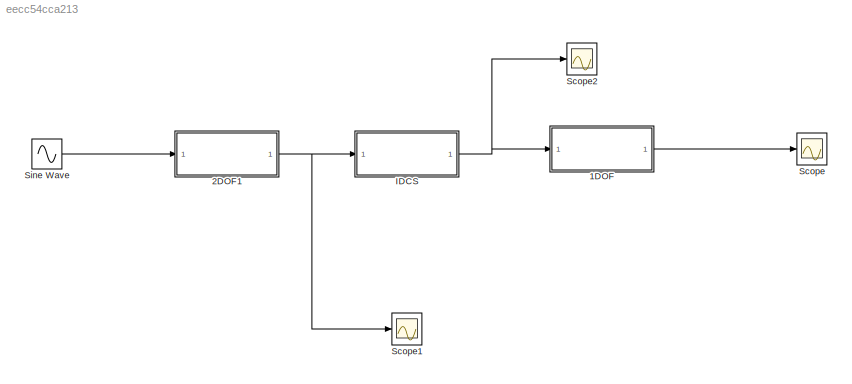
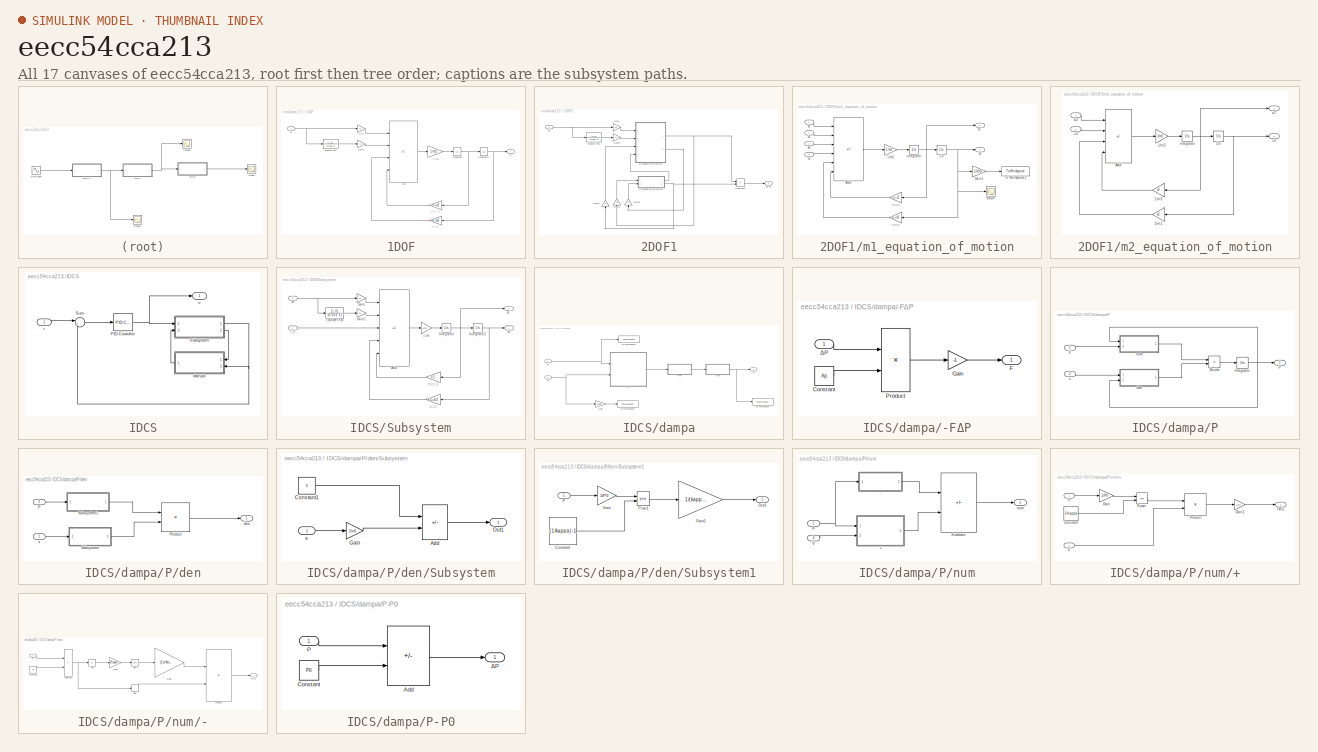
[diagram: thumbnail index - all 17 canvases of the model, root first then tree order]
MODEL slx_eecc54cca213
KIND model
CONFIG AbsTol = auto
CONFIG EnableMultiTasking = off
CONFIG FixedStep = 0.001
CONFIG MaxStep = auto
CONFIG MinStep = auto
CONFIG RelTol = 1e-3
CONFIG SampleTimeConstraint = Unconstrained
CONFIG Solver = ode4
CONFIG SolverName = ode4
CONFIG StartTime = 0.0
CONFIG StopTime = 10.0
BLOCK [SubSystem] 1DOF
  Ports = [1, 1]
  RequestExecContextInheritance = off
BLOCK [Sum] 1DOF/Add
  IconShape = rectangular
  Inputs = ++--
  Ports = [4, 1]
BLOCK [Gain] 1DOF/Gain1
  Gain = c1
BLOCK [Integrator] 1DOF/Integrator
  Ports = [1, 1]
BLOCK [Integrator] 1DOF/Integrator1
  Ports = [1, 1]
BLOCK [TransferFcn] 1DOF/Transfer Fcn
  Denominator = [0.001 1]
  Numerator = [1 0]
BLOCK [Inport] 1DOF/x0
BLOCK [Outport] 1DOF/x1
BLOCK [Gain] 1DOF/ばね下
  Gain = k1
BLOCK [Gain] 1DOF/ばね定数 
  Gain = k1+k2
BLOCK [Gain] 1DOF/ばね定数 1
  Gain = c1+c2
BLOCK [Gain] 1DOF/質量m
  Gain = 1/m1
BLOCK [SubSystem] 2DOF1
  Ports = [1, 1]
  RequestExecContextInheritance = off
BLOCK [Gain] 2DOF1/Gain
  Gain = k1
BLOCK [Gain] 2DOF1/Gain1
  Gain = k2
  NameLocation = right
BLOCK [Gain] 2DOF1/Gain2
  Gain = k2
  NameLocation = right
BLOCK [Gain] 2DOF1/Gain3
  Gain = c2
  NameLocation = right
BLOCK [Gain] 2DOF1/Gain5
  Gain = c1
BLOCK [Sum] 2DOF1/Subtract1
  IconShape = rectangular
  Inputs = -+
  Ports = [2, 1]
BLOCK [TransferFcn] 2DOF1/Transfer Fcn
  Denominator = [0.001 1]
  Numerator = [1 0]
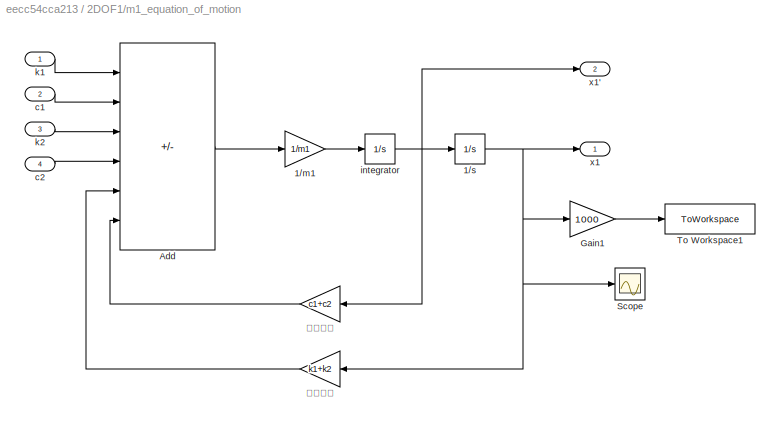
BLOCK [SubSystem] 2DOF1/m1_equation_of_motion
  Ports = [4, 2]
  RequestExecContextInheritance = off
BLOCK [Gain] 2DOF1/m1_equation_of_motion/1//m1
  Gain = 1/m1
BLOCK [Integrator] 2DOF1/m1_equation_of_motion/1//s
  Ports = [1, 1]
BLOCK [Sum] 2DOF1/m1_equation_of_motion/Add
  IconShape = rectangular
  Inputs = ++++--
  Ports = [6, 1]
BLOCK [Gain] 2DOF1/m1_equation_of_motion/Gain1
  Gain = 1000
BLOCK [Scope] 2DOF1/m1_equation_of_motion/Scope
  Floating = off
  NumInputPorts = 1
  Ports = [1]
  ScopeSpecificationString = Simulink.scopes.TimeScopeBlockCfg('CurrentConfiguration', extmgr.ConfigurationSet(extmgr.Configuration('Core','General UI',true),extmgr.Configuration('Core','Source UI',true),extmgr.Configuration('Sources','WiredSimulink',true,'DataLoggingVariableName','ScopeData3'),extmgr.Configuration('Visuals','Time Domain',true,'SerializedDisplays',{struct('MinYLimReal','-0.00855','MaxYLimReal','0.00872','YLab...<+1362ch>
BLOCK [ToWorkspace] 2DOF1/m1_equation_of_motion/To Workspace1
  FixptAsFi = on
  MaxDataPoints = inf
  Ports = [1]
  SampleTime = -1
  SaveFormat = Timeseries
  VariableName = x1
BLOCK [Inport] 2DOF1/m1_equation_of_motion/c1
  IconDisplay = Port number and signal name
  Port = 2
BLOCK [Inport] 2DOF1/m1_equation_of_motion/c2
  IconDisplay = Port number and signal name
  Port = 4
BLOCK [Integrator] 2DOF1/m1_equation_of_motion/integrator
  Ports = [1, 1]
BLOCK [Inport] 2DOF1/m1_equation_of_motion/k1
  IconDisplay = Port number and signal name
BLOCK [Inport] 2DOF1/m1_equation_of_motion/k2
  IconDisplay = Port number and signal name
  Port = 3
BLOCK [Outport] 2DOF1/m1_equation_of_motion/x1
BLOCK [Outport] 2DOF1/m1_equation_of_motion/x1'
  Port = 2
BLOCK [Gain] 2DOF1/m1_equation_of_motion/ばね定数
  Gain = k1+k2
BLOCK [Gain] 2DOF1/m1_equation_of_motion/減衰係数
  Gain = c1+c2
BLOCK [SubSystem] 2DOF1/m2_equation_of_motion
  Ports = [2, 2]
  RequestExecContextInheritance = off
BLOCK [Gain] 2DOF1/m2_equation_of_motion/1//m1
  Gain = k2
BLOCK [Gain] 2DOF1/m2_equation_of_motion/1//m2
  Gain = 1/m2
BLOCK [Gain] 2DOF1/m2_equation_of_motion/1//m3
  Gain = c2
BLOCK [Integrator] 2DOF1/m2_equation_of_motion/1//s
  Ports = [1, 1]
BLOCK [Sum] 2DOF1/m2_equation_of_motion/Add
  IconShape = rectangular
  Inputs = ++--
  Ports = [4, 1]
BLOCK [Inport] 2DOF1/m2_equation_of_motion/c2
  Port = 2
BLOCK [Integrator] 2DOF1/m2_equation_of_motion/integrator
  Ports = [1, 1]
BLOCK [Inport] 2DOF1/m2_equation_of_motion/k2 
BLOCK [Outport] 2DOF1/m2_equation_of_motion/x2
  Port = 2
BLOCK [Outport] 2DOF1/m2_equation_of_motion/x2'
BLOCK [Inport] 2DOF1/x0
BLOCK [Outport] 2DOF1/x2-x1
BLOCK [SubSystem] IDCS
  Ports = [1, 1]
  RequestExecContextInheritance = off
BLOCK [Reference] IDCS/PID Controller  REF=simulink/Continuous/PID Controller
  Ports = [1, 1]
  SourceBlock = simulink/Continuous/PID Controller
  SourceProductBaseCode = SL
  SourceType = PID 1dof
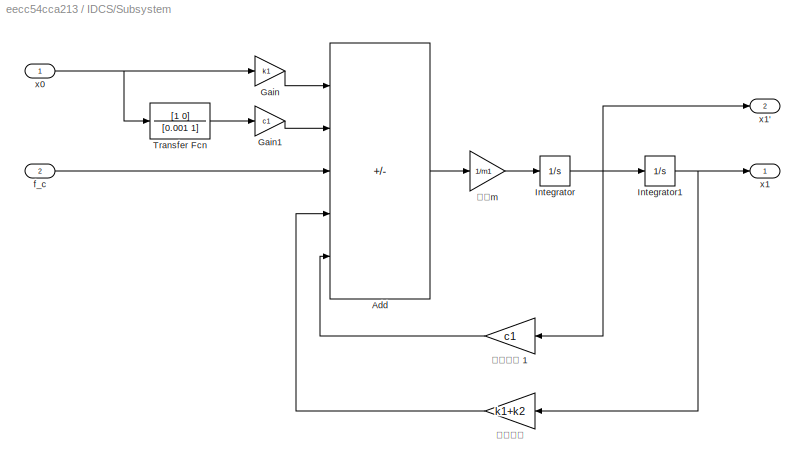
BLOCK [SubSystem] IDCS/Subsystem
  Ports = [2, 2]
  RequestExecContextInheritance = off
BLOCK [Sum] IDCS/Subsystem/Add
  IconShape = rectangular
  Inputs = +++--
  Ports = [5, 1]
BLOCK [Gain] IDCS/Subsystem/Gain
  Gain = k1
BLOCK [Gain] IDCS/Subsystem/Gain1
  Gain = c1
BLOCK [Integrator] IDCS/Subsystem/Integrator
  Ports = [1, 1]
BLOCK [Integrator] IDCS/Subsystem/Integrator1
  Ports = [1, 1]
BLOCK [TransferFcn] IDCS/Subsystem/Transfer Fcn
  Denominator = [0.001 1]
  Numerator = [1 0]
BLOCK [Inport] IDCS/Subsystem/f_c
  Port = 2
BLOCK [Inport] IDCS/Subsystem/x0
BLOCK [Outport] IDCS/Subsystem/x1
BLOCK [Outport] IDCS/Subsystem/x1'
  Port = 2
BLOCK [Gain] IDCS/Subsystem/ばね定数 
  Gain = k1+k2
BLOCK [Gain] IDCS/Subsystem/ばね定数 1
  Gain = c1
BLOCK [Gain] IDCS/Subsystem/質量m
  Gain = 1/m1
BLOCK [Sum] IDCS/Sum
  Inputs = |+-
  Ports = [2, 1]
BLOCK [SubSystem] IDCS/dampa
  Ports = [2, 1]
  RequestExecContextInheritance = off
BLOCK [SubSystem] IDCS/dampa/-FΔP
  Ports = [1, 1]
  RequestExecContextInheritance = off
BLOCK [Constant] IDCS/dampa/-FΔP/Constant
  Value = Ap
BLOCK [Outport] IDCS/dampa/-FΔP/F
BLOCK [Gain] IDCS/dampa/-FΔP/Gain
  Gain = -1
BLOCK [Product] IDCS/dampa/-FΔP/Product
  Ports = [2, 1]
BLOCK [Inport] IDCS/dampa/-FΔP/ΔP
BLOCK [Gain] IDCS/dampa/Gain
  Gain = 1000
BLOCK [SubSystem] IDCS/dampa/P
  Ports = [2, 1]
  RequestExecContextInheritance = off
BLOCK [SubSystem] IDCS/dampa/P-P0
  Ports = [1, 1]
  RequestExecContextInheritance = off
BLOCK [Sum] IDCS/dampa/P-P0/Add
  IconShape = rectangular
  Inputs = +-
  Ports = [2, 1]
BLOCK [Constant] IDCS/dampa/P-P0/Constant
  Value = P0
BLOCK [Inport] IDCS/dampa/P-P0/P
BLOCK [Outport] IDCS/dampa/P-P0/ΔP
BLOCK [Product] IDCS/dampa/P/Divide
  Inputs = */
  Ports = [2, 1]
BLOCK [Integrator] IDCS/dampa/P/Integrator
  InitialCondition = P0
  Ports = [1, 1]
BLOCK [Outport] IDCS/dampa/P/P
BLOCK [Inport] IDCS/dampa/P/V
BLOCK [SubSystem] IDCS/dampa/P/den
  Ports = [2, 1]
  RequestExecContextInheritance = off
BLOCK [Inport] IDCS/dampa/P/den/P
  Port = 2
BLOCK [Product] IDCS/dampa/P/den/Product
  Ports = [2, 1]
BLOCK [SubSystem] IDCS/dampa/P/den/Subsystem
  Ports = [1, 1]
  RequestExecContextInheritance = off
BLOCK [Sum] IDCS/dampa/P/den/Subsystem/Add
  IconShape = rectangular
  Inputs = +-
  Ports = [2, 1]
BLOCK [Constant] IDCS/dampa/P/den/Subsystem/Constant1
BLOCK [Gain] IDCS/dampa/P/den/Subsystem/Gain
  Gain = 1/x0
BLOCK [Outport] IDCS/dampa/P/den/Subsystem/Out1
BLOCK [Inport] IDCS/dampa/P/den/Subsystem/x
BLOCK [SubSystem] IDCS/dampa/P/den/Subsystem1
  Ports = [1, 1]
  RequestExecContextInheritance = off
BLOCK [Constant] IDCS/dampa/P/den/Subsystem1/Constant
  Value = (1/kappa)-1
BLOCK [Gain] IDCS/dampa/P/den/Subsystem1/Gain
  Gain = 1/P0
BLOCK [Gain] IDCS/dampa/P/den/Subsystem1/Gain1
  Gain = 1/(kappa*P0)
BLOCK [Outport] IDCS/dampa/P/den/Subsystem1/Out1
BLOCK [Inport] IDCS/dampa/P/den/Subsystem1/P
BLOCK [Math] IDCS/dampa/P/den/Subsystem1/Pow1
  Operator = pow
  OutputSignalType = real
  Ports = [2, 1]
  SignedPower = on
BLOCK [Outport] IDCS/dampa/P/den/den
BLOCK [Inport] IDCS/dampa/P/den/x
BLOCK [SubSystem] IDCS/dampa/P/num
  Ports = [2, 1]
  RequestExecContextInheritance = off
BLOCK [SubSystem] IDCS/dampa/P/num/+
  Ports = [2, 1]
  RequestExecContextInheritance = off
BLOCK [Constant] IDCS/dampa/P/num/+/Constant
  Value = 1/kappa
BLOCK [Gain] IDCS/dampa/P/num/+/Gain
  Gain = 1/P0
BLOCK [Gain] IDCS/dampa/P/num/+/Gain1
  Gain = 1/x0
BLOCK [Outport] IDCS/dampa/P/num/+/Out1
BLOCK [Inport] IDCS/dampa/P/num/+/P
BLOCK [Math] IDCS/dampa/P/num/+/Power
  Operator = pow
  OutputSignalType = real
  Ports = [2, 1]
  SignedPower = on
BLOCK [Product] IDCS/dampa/P/num/+/Product
  Ports = [2, 1]
BLOCK [Inport] IDCS/dampa/P/num/+/V
  Port = 2
BLOCK [SubSystem] IDCS/dampa/P/num/-
  Ports = [1, 1]
  RequestExecContextInheritance = off
BLOCK [Abs] IDCS/dampa/P/num/-/Abs
  SaturateOnIntegerOverflow = off
BLOCK [Constant] IDCS/dampa/P/num/-/Constant
  Value = P0
BLOCK [Gain] IDCS/dampa/P/num/-/Gain
  Gain = 2*row0
BLOCK [Gain] IDCS/dampa/P/num/-/Gain1
  Gain = (Cor*Aor)/(row0*Ap*x0)
BLOCK [Outport] IDCS/dampa/P/num/-/Out1
BLOCK [Inport] IDCS/dampa/P/num/-/P
BLOCK [Product] IDCS/dampa/P/num/-/Product
  Ports = [2, 1]
BLOCK [Signum] IDCS/dampa/P/num/-/Sign
BLOCK [Sqrt] IDCS/dampa/P/num/-/Sqrt
BLOCK [Sum] IDCS/dampa/P/num/-/Subtract
  IconShape = rectangular
  Inputs = +-
  Ports = [2, 1]
BLOCK [Inport] IDCS/dampa/P/num/P
BLOCK [Sum] IDCS/dampa/P/num/Subtract
  IconShape = rectangular
  Inputs = -+
  Ports = [2, 1]
BLOCK [Inport] IDCS/dampa/P/num/V
  Port = 2
BLOCK [Outport] IDCS/dampa/P/num/num
BLOCK [Inport] IDCS/dampa/P/x
  Port = 2
BLOCK [ToWorkspace] IDCS/dampa/To Workspace
  FixptAsFi = on
  MaxDataPoints = inf
  Ports = [1]
  SampleTime = -1
  SaveFormat = Timeseries
  VariableName = F
BLOCK [ToWorkspace] IDCS/dampa/To Workspace1
  FixptAsFi = on
  MaxDataPoints = inf
  Ports = [1]
  SampleTime = -1
  SaveFormat = Timeseries
  VariableName = X
BLOCK [ToWorkspace] IDCS/dampa/To Workspace2
  FixptAsFi = on
  MaxDataPoints = inf
  Ports = [1]
  SampleTime = -1
  SaveFormat = Timeseries
  VariableName = V
BLOCK [Outport] IDCS/dampa/f_c
BLOCK [Inport] IDCS/dampa/x1
  Port = 2
BLOCK [Inport] IDCS/dampa/x1'
BLOCK [Inport] IDCS/r
BLOCK [Outport] IDCS/u
BLOCK [Scope] Scope
  Floating = off
  NumInputPorts = 1
  Ports = [1]
  ScopeSpecificationString = Simulink.scopes.TimeScopeBlockCfg('CurrentConfiguration', extmgr.ConfigurationSet(extmgr.Configuration('Core','General UI',true),extmgr.Configuration('Core','Source UI',true),extmgr.Configuration('Sources','WiredSimulink',true,'DataLoggingVariableName','ScopeData1'),extmgr.Configuration('Visuals','Time Domain',true,'SerializedDisplays',{struct('MinYLimReal','-0.00363','MaxYLimReal','0.00447','YLab...<+1390ch>
BLOCK [Scope] Scope1
  Floating = off
  NumInputPorts = 1
  Ports = [1]
  ScopeSpecificationString = Simulink.scopes.TimeScopeBlockCfg('CurrentConfiguration', extmgr.ConfigurationSet(extmgr.Configuration('Core','General UI',true),extmgr.Configuration('Core','Source UI',true),extmgr.Configuration('Sources','WiredSimulink',true,'DataLoggingVariableName','ScopeData3'),extmgr.Configuration('Visuals','Time Domain',true,'SerializedDisplays',{struct('MinYLimReal','-0.00797','MaxYLimReal','0.00805','YLab...<+1391ch>
BLOCK [Scope] Scope2
  Floating = off
  NumInputPorts = 1
  Ports = [1]
  ScopeSpecificationString = Simulink.scopes.TimeScopeBlockCfg('CurrentConfiguration', extmgr.ConfigurationSet(extmgr.Configuration('Core','General UI',true),extmgr.Configuration('Core','Source UI',true),extmgr.Configuration('Sources','WiredSimulink',true,'DataLoggingVariableName','ScopeData2'),extmgr.Configuration('Visuals','Time Domain',true,'SerializedDisplays',{struct('MinYLimReal','-0.0198','MaxYLimReal','0.02241','YLabe...<+1388ch>
BLOCK [Sin] Sine Wave
  Amplitude = A
  Frequency = Hz
  Ports = [0, 1]
  SampleTime = 0
LINE 1DOF/Add:1 -> 1DOF/質量m:1
LINE 1DOF/Gain1:1 -> 1DOF/Add:2
NET 1DOF/Integrator1:1 -> 1DOF/x1:1, 1DOF/ばね定数 :1
NET 1DOF/Integrator:1 -> 1DOF/Integrator1:1, 1DOF/ばね定数 1:1
LINE 1DOF/Transfer Fcn:1 -> 1DOF/Gain1:1
NET 1DOF/x0:1 -> 1DOF/Transfer Fcn:1, 1DOF/ばね下:1
LINE 1DOF/ばね下:1 -> 1DOF/Add:1
LINE 1DOF/ばね定数 1:1 -> 1DOF/Add:4
LINE 1DOF/ばね定数 :1 -> 1DOF/Add:3
LINE 1DOF/質量m:1 -> 1DOF/Integrator:1
LINE 1DOF:1 -> Scope:1
LINE 2DOF1/Gain1:1 -> 2DOF1/m2_equation_of_motion:1
LINE 2DOF1/Gain2:1 -> 2DOF1/m1_equation_of_motion:3
LINE 2DOF1/Gain3:1 -> 2DOF1/m2_equation_of_motion:2
LINE 2DOF1/Gain5:1 -> 2DOF1/m1_equation_of_motion:2
LINE 2DOF1/Gain:1 -> 2DOF1/m1_equation_of_motion:1
LINE 2DOF1/Subtract1:1 -> 2DOF1/x2-x1:1
LINE 2DOF1/Transfer Fcn:1 -> 2DOF1/Gain5:1
LINE 2DOF1/m1_equation_of_motion/1//m1:1 -> 2DOF1/m1_equation_of_motion/integrator:1
NET 2DOF1/m1_equation_of_motion/1//s:1 -> 2DOF1/m1_equation_of_motion/Gain1:1, 2DOF1/m1_equation_of_motion/Scope:1, 2DOF1/m1_equation_of_motion/x1:1, 2DOF1/m1_equation_of_motion/ばね定数:1
LINE 2DOF1/m1_equation_of_motion/Add:1 -> 2DOF1/m1_equation_of_motion/1//m1:1
LINE 2DOF1/m1_equation_of_motion/Gain1:1 -> 2DOF1/m1_equation_of_motion/To Workspace1:1
LINE 2DOF1/m1_equation_of_motion/c1:1 -> 2DOF1/m1_equation_of_motion/Add:2
LINE 2DOF1/m1_equation_of_motion/c2:1 -> 2DOF1/m1_equation_of_motion/Add:4
NET 2DOF1/m1_equation_of_motion/integrator:1 -> 2DOF1/m1_equation_of_motion/1//s:1, 2DOF1/m1_equation_of_motion/x1':1, 2DOF1/m1_equation_of_motion/減衰係数:1
LINE 2DOF1/m1_equation_of_motion/k1:1 -> 2DOF1/m1_equation_of_motion/Add:1
LINE 2DOF1/m1_equation_of_motion/k2:1 -> 2DOF1/m1_equation_of_motion/Add:3
LINE 2DOF1/m1_equation_of_motion/ばね定数:1 -> 2DOF1/m1_equation_of_motion/Add:5
LINE 2DOF1/m1_equation_of_motion/減衰係数:1 -> 2DOF1/m1_equation_of_motion/Add:6
NET 2DOF1/m1_equation_of_motion:1 -> 2DOF1/Gain1:1, 2DOF1/Subtract1:1
LINE 2DOF1/m1_equation_of_motion:2 -> 2DOF1/Gain3:1
LINE 2DOF1/m2_equation_of_motion/1//m1:1 -> 2DOF1/m2_equation_of_motion/Add:3
LINE 2DOF1/m2_equation_of_motion/1//m2:1 -> 2DOF1/m2_equation_of_motion/integrator:1
LINE 2DOF1/m2_equation_of_motion/1//m3:1 -> 2DOF1/m2_equation_of_motion/Add:4
NET 2DOF1/m2_equation_of_motion/1//s:1 -> 2DOF1/m2_equation_of_motion/1//m1:1, 2DOF1/m2_equation_of_motion/x2:1
LINE 2DOF1/m2_equation_of_motion/Add:1 -> 2DOF1/m2_equation_of_motion/1//m2:1
LINE 2DOF1/m2_equation_of_motion/c2:1 -> 2DOF1/m2_equation_of_motion/Add:2
NET 2DOF1/m2_equation_of_motion/integrator:1 -> 2DOF1/m2_equation_of_motion/1//m3:1, 2DOF1/m2_equation_of_motion/1//s:1, 2DOF1/m2_equation_of_motion/x2':1
LINE 2DOF1/m2_equation_of_motion/k2 :1 -> 2DOF1/m2_equation_of_motion/Add:1
LINE 2DOF1/m2_equation_of_motion:1 -> 2DOF1/m1_equation_of_motion:4
NET 2DOF1/m2_equation_of_motion:2 -> 2DOF1/Gain2:1, 2DOF1/Subtract1:2
NET 2DOF1/x0:1 -> 2DOF1/Gain:1, 2DOF1/Transfer Fcn:1
NET 2DOF1:1 -> IDCS:1, Scope1:1
NET IDCS/PID Controller:1 -> IDCS/Subsystem:1, IDCS/u:1
LINE IDCS/Subsystem/Add:1 -> IDCS/Subsystem/質量m:1
LINE IDCS/Subsystem/Gain1:1 -> IDCS/Subsystem/Add:2
LINE IDCS/Subsystem/Gain:1 -> IDCS/Subsystem/Add:1
NET IDCS/Subsystem/Integrator1:1 -> IDCS/Subsystem/x1:1, IDCS/Subsystem/ばね定数 :1
NET IDCS/Subsystem/Integrator:1 -> IDCS/Subsystem/Integrator1:1, IDCS/Subsystem/x1':1, IDCS/Subsystem/ばね定数 1:1
LINE IDCS/Subsystem/Transfer Fcn:1 -> IDCS/Subsystem/Gain1:1
LINE IDCS/Subsystem/f_c:1 -> IDCS/Subsystem/Add:3
NET IDCS/Subsystem/x0:1 -> IDCS/Subsystem/Gain:1, IDCS/Subsystem/Transfer Fcn:1
LINE IDCS/Subsystem/ばね定数 1:1 -> IDCS/Subsystem/Add:5
LINE IDCS/Subsystem/ばね定数 :1 -> IDCS/Subsystem/Add:4
LINE IDCS/Subsystem/質量m:1 -> IDCS/Subsystem/Integrator:1
NET IDCS/Subsystem:1 -> IDCS/Sum:2, IDCS/dampa:2
LINE IDCS/Subsystem:2 -> IDCS/dampa:1
LINE IDCS/Sum:1 -> IDCS/PID Controller:1
LINE IDCS/dampa/-FΔP/Constant:1 -> IDCS/dampa/-FΔP/Product:2
LINE IDCS/dampa/-FΔP/Gain:1 -> IDCS/dampa/-FΔP/F:1
LINE IDCS/dampa/-FΔP/Product:1 -> IDCS/dampa/-FΔP/Gain:1
LINE IDCS/dampa/-FΔP/ΔP:1 -> IDCS/dampa/-FΔP/Product:1
NET IDCS/dampa/-FΔP:1 -> IDCS/dampa/To Workspace:1, IDCS/dampa/f_c:1
LINE IDCS/dampa/Gain:1 -> IDCS/dampa/To Workspace1:1
LINE IDCS/dampa/P-P0/Add:1 -> IDCS/dampa/P-P0/ΔP:1
LINE IDCS/dampa/P-P0/Constant:1 -> IDCS/dampa/P-P0/Add:2
LINE IDCS/dampa/P-P0/P:1 -> IDCS/dampa/P-P0/Add:1
LINE IDCS/dampa/P-P0:1 -> IDCS/dampa/-FΔP:1
LINE IDCS/dampa/P/Divide:1 -> IDCS/dampa/P/Integrator:1
NET IDCS/dampa/P/Integrator:1 -> IDCS/dampa/P/P:1, IDCS/dampa/P/den:2, IDCS/dampa/P/num:1
LINE IDCS/dampa/P/V:1 -> IDCS/dampa/P/num:2
LINE IDCS/dampa/P/den/P:1 -> IDCS/dampa/P/den/Subsystem1:1
LINE IDCS/dampa/P/den/Product:1 -> IDCS/dampa/P/den/den:1
LINE IDCS/dampa/P/den/Subsystem/Add:1 -> IDCS/dampa/P/den/Subsystem/Out1:1
LINE IDCS/dampa/P/den/Subsystem/Constant1:1 -> IDCS/dampa/P/den/Subsystem/Add:1
LINE IDCS/dampa/P/den/Subsystem/Gain:1 -> IDCS/dampa/P/den/Subsystem/Add:2
LINE IDCS/dampa/P/den/Subsystem/x:1 -> IDCS/dampa/P/den/Subsystem/Gain:1
LINE IDCS/dampa/P/den/Subsystem1/Constant:1 -> IDCS/dampa/P/den/Subsystem1/Pow1:2
LINE IDCS/dampa/P/den/Subsystem1/Gain1:1 -> IDCS/dampa/P/den/Subsystem1/Out1:1
LINE IDCS/dampa/P/den/Subsystem1/Gain:1 -> IDCS/dampa/P/den/Subsystem1/Pow1:1
LINE IDCS/dampa/P/den/Subsystem1/P:1 -> IDCS/dampa/P/den/Subsystem1/Gain:1
LINE IDCS/dampa/P/den/Subsystem1/Pow1:1 -> IDCS/dampa/P/den/Subsystem1/Gain1:1
LINE IDCS/dampa/P/den/Subsystem1:1 -> IDCS/dampa/P/den/Product:1
LINE IDCS/dampa/P/den/Subsystem:1 -> IDCS/dampa/P/den/Product:2
LINE IDCS/dampa/P/den/x:1 -> IDCS/dampa/P/den/Subsystem:1
LINE IDCS/dampa/P/den:1 -> IDCS/dampa/P/Divide:2
LINE IDCS/dampa/P/num/+/Constant:1 -> IDCS/dampa/P/num/+/Power:2
LINE IDCS/dampa/P/num/+/Gain1:1 -> IDCS/dampa/P/num/+/Out1:1
LINE IDCS/dampa/P/num/+/Gain:1 -> IDCS/dampa/P/num/+/Power:1
LINE IDCS/dampa/P/num/+/P:1 -> IDCS/dampa/P/num/+/Gain:1
LINE IDCS/dampa/P/num/+/Power:1 -> IDCS/dampa/P/num/+/Product:1
LINE IDCS/dampa/P/num/+/Product:1 -> IDCS/dampa/P/num/+/Gain1:1
LINE IDCS/dampa/P/num/+/V:1 -> IDCS/dampa/P/num/+/Product:2
LINE IDCS/dampa/P/num/+:1 -> IDCS/dampa/P/num/Subtract:2
LINE IDCS/dampa/P/num/-/Abs:1 -> IDCS/dampa/P/num/-/Gain:1
LINE IDCS/dampa/P/num/-/Constant:1 -> IDCS/dampa/P/num/-/Subtract:2
LINE IDCS/dampa/P/num/-/Gain1:1 -> IDCS/dampa/P/num/-/Product:1
LINE IDCS/dampa/P/num/-/Gain:1 -> IDCS/dampa/P/num/-/Sqrt:1
LINE IDCS/dampa/P/num/-/P:1 -> IDCS/dampa/P/num/-/Subtract:1
LINE IDCS/dampa/P/num/-/Product:1 -> IDCS/dampa/P/num/-/Out1:1
LINE IDCS/dampa/P/num/-/Sign:1 -> IDCS/dampa/P/num/-/Product:2
LINE IDCS/dampa/P/num/-/Sqrt:1 -> IDCS/dampa/P/num/-/Gain1:1
NET IDCS/dampa/P/num/-/Subtract:1 -> IDCS/dampa/P/num/-/Abs:1, IDCS/dampa/P/num/-/Sign:1
LINE IDCS/dampa/P/num/-:1 -> IDCS/dampa/P/num/Subtract:1
NET IDCS/dampa/P/num/P:1 -> IDCS/dampa/P/num/+:1, IDCS/dampa/P/num/-:1
LINE IDCS/dampa/P/num/Subtract:1 -> IDCS/dampa/P/num/num:1
LINE IDCS/dampa/P/num/V:1 -> IDCS/dampa/P/num/+:2
LINE IDCS/dampa/P/num:1 -> IDCS/dampa/P/Divide:1
LINE IDCS/dampa/P/x:1 -> IDCS/dampa/P/den:1
LINE IDCS/dampa/P:1 -> IDCS/dampa/P-P0:1
NET IDCS/dampa/x1':1 -> IDCS/dampa/P:1, IDCS/dampa/To Workspace2:1
NET IDCS/dampa/x1:1 -> IDCS/dampa/Gain:1, IDCS/dampa/P:2
LINE IDCS/dampa:1 -> IDCS/Subsystem:2
LINE IDCS/r:1 -> IDCS/Sum:1
NET IDCS:1 -> 1DOF:1, Scope2:1
LINE Sine Wave:1 -> 2DOF1:1
note: NET lines group one-source signal fan-out (src -> all destinations, sorted); 1:1 wires keep LINE
